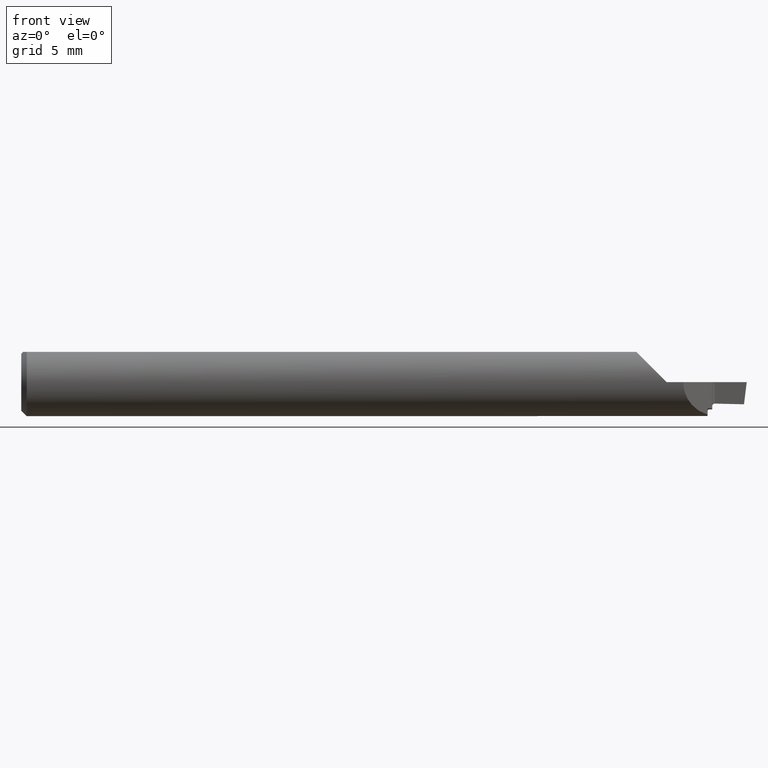
[diagram: clean part render]
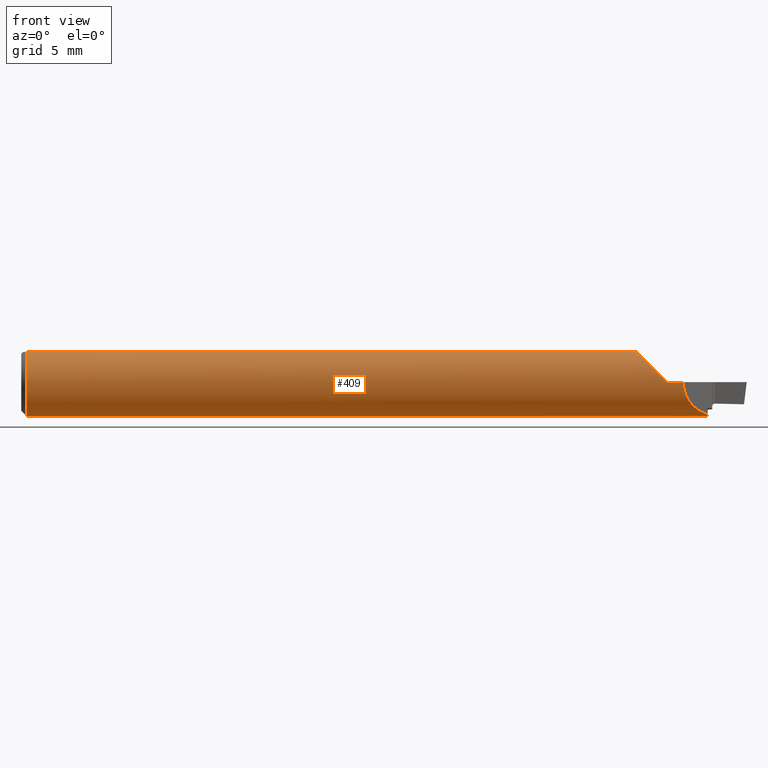
[diagram: same view with one face highlighted and labeled with its STEP entity id]
A machine part, front view. The second image highlights one B-rep face of the part: STEP entity #409.
In plain terms, the highlighted cylindrical surface (edge-blend (fillet) strip) has radius 2.3774 mm, axis along (-1, -0, -0).
Its self-contained STEP definition (entity closure, byte-faithful):
#9 = ORIENTED_EDGE ( 'NONE', *, *, #396, .T. ) ;
#17 = DIRECTION ( 'NONE',  ( -1.000000000000000000, -0.000000000000000000, -0.000000000000000000 ) ) ;
#23 = CARTESIAN_POINT ( 'NONE',  ( 1.824999999999999512, -0.09359999999999998876, -0.04306537613498800238 ) ) ;
#28 = DIRECTION ( 'NONE',  ( 0.000000000000000000, 0.000000000000000000, -1.000000000000000000 ) ) ;
#31 =( BOUNDED_CURVE ( )  B_SPLINE_CURVE ( 3, ( #588, #584, #23, #333 ),
 .UNSPECIFIED., .F., .T. ) 
 B_SPLINE_CURVE_WITH_KNOTS ( ( 4, 4 ),
 ( 4.999657666618046115, 6.283185307179586232 ),
 .UNSPECIFIED. ) 
 CURVE ( )  GEOMETRIC_REPRESENTATION_ITEM ( )  RATIONAL_B_SPLINE_CURVE ( ( 1.000000000000000000, 0.8673607768766125048, 0.8673607768766125048, 1.000000000000000000 ) ) 
 REPRESENTATION_ITEM ( '' )  );
#48 = ORIENTED_EDGE ( 'NONE', *, *, #654, .T. ) ;
#63 = VECTOR ( 'NONE', #601, 39.37007874015748143 ) ;
#77 = CARTESIAN_POINT ( 'NONE',  ( 0.01499999999999995955, 0.000000000000000000, 0.000000000000000000 ) ) ;
#86 = FACE_OUTER_BOUND ( 'NONE', #779, .T. ) ;
#100 = CARTESIAN_POINT ( 'NONE',  ( 1.459999999999999964, 0.000000000000000000, 0.000000000000000000 ) ) ;
#106 = VERTEX_POINT ( 'NONE', #731 ) ;
#117 = VECTOR ( 'NONE', #210, 39.37007874015748143 ) ;
#151 = CARTESIAN_POINT ( 'NONE',  ( 0.000000000000000000, 0.000000000000000000, 0.000000000000000000 ) ) ;
#159 = CARTESIAN_POINT ( 'NONE',  ( 1.695999999999999286, -0.04209513035969836975, 0.08360000000000000764 ) ) ;
#162 = ORIENTED_EDGE ( 'NONE', *, *, #616, .T. ) ;
#168 = CIRCLE ( 'NONE', #452, 0.09360000000000001652 ) ;
#186 = EDGE_CURVE ( 'NONE', #625, #254, #471, .T. ) ;
#194 = CARTESIAN_POINT ( 'NONE',  ( 1.712338867969052103, -0.07454376160376645355, 0.06726113203094705173 ) ) ;
#198 = CARTESIAN_POINT ( 'NONE',  ( 1.459999999999999964, -0.006308577734120122439, -0.09338716103925936984 ) ) ;
#200 = VERTEX_POINT ( 'NONE', #751 ) ;
#210 = DIRECTION ( 'NONE',  ( -1.000000000000000000, -0.000000000000000000, -0.000000000000000000 ) ) ;
#222 = VECTOR ( 'NONE', #336, 39.37007874015748143 ) ;
#234 = EDGE_CURVE ( 'NONE', #382, #439, #168, .T. ) ;
#246 = VECTOR ( 'NONE', #485, 39.37007874015748143 ) ;
#248 = EDGE_CURVE ( 'NONE', #766, #625, #346, .T. ) ;
#254 = VERTEX_POINT ( 'NONE', #159 ) ;
#259 = CIRCLE ( 'NONE', #799, 0.09360000000000001652 ) ;
#263 = CARTESIAN_POINT ( 'NONE',  ( 1.779599999999998516, -0.09360000000000001652, 0.000000000000000000 ) ) ;
#280 = ORIENTED_EDGE ( 'NONE', *, *, #544, .T. ) ;
#303 =( BOUNDED_CURVE ( )  B_SPLINE_CURVE ( 3, ( #792, #681, #732, #367 ),
 .UNSPECIFIED., .F., .F. ) 
 B_SPLINE_CURVE_WITH_KNOTS ( ( 4, 4 ),
 ( 1.638246794983561072, 1.858065013028253221 ),
 .UNSPECIFIED. ) 
 CURVE ( )  GEOMETRIC_REPRESENTATION_ITEM ( )  RATIONAL_B_SPLINE_CURVE ( ( 1.000000000000000000, 0.9959773811387675480, 0.9959773811387675480, 1.000000000000000000 ) ) 
 REPRESENTATION_ITEM ( '' )  );
#305 = LINE ( 'NONE', #800, #246 ) ;
#308 = DIRECTION ( 'NONE',  ( 1.000000000000000000, 0.000000000000000000, 0.000000000000000000 ) ) ;
#329 = DIRECTION ( 'NONE',  ( 1.000000000000000000, 0.000000000000000000, 0.000000000000000000 ) ) ;
#333 = CARTESIAN_POINT ( 'NONE',  ( 1.824999999999999512, -0.09360000000000003040, 0.000000000000000000 ) ) ;
#336 = DIRECTION ( 'NONE',  ( -1.000000000000000000, -0.000000000000000000, -0.000000000000000000 ) ) ;
#338 = DIRECTION ( 'NONE',  ( 0.000000000000000000, 0.000000000000000000, 1.000000000000000000 ) ) ;
#346 = LINE ( 'NONE', #769, #63 ) ;
#361 = ORIENTED_EDGE ( 'NONE', *, *, #368, .T. ) ;
#367 = CARTESIAN_POINT ( 'NONE',  ( 1.892079947235355775, -0.02652005276464429115, -0.08976439606748590205 ) ) ;
#368 = EDGE_CURVE ( 'NONE', #648, #766, #31, .T. ) ;
#374 = ORIENTED_EDGE ( 'NONE', *, *, #186, .T. ) ;
#382 = VERTEX_POINT ( 'NONE', #198 ) ;
#386 = ORIENTED_EDGE ( 'NONE', *, *, #784, .F. ) ;
#395 = CARTESIAN_POINT ( 'NONE',  ( 1.743269953535348638, -0.09360000000000001652, 0.03633004646465035764 ) ) ;
#396 = EDGE_CURVE ( 'NONE', #200, #106, #689, .T. ) ;
#398 = LINE ( 'NONE', #649, #222 ) ;
#404 = DIRECTION ( 'NONE',  ( 0.000000000000000000, 0.000000000000000000, -1.000000000000000000 ) ) ;
#409 = ADVANCED_FACE ( 'NONE', ( #86 ), #579, .T. ) ;
#411 = ORIENTED_EDGE ( 'NONE', *, *, #234, .F. ) ;
#421 = EDGE_CURVE ( 'NONE', #254, #200, #523, .T. ) ;
#428 = CARTESIAN_POINT ( 'NONE',  ( 1.892079947235355775, -0.02652005276464429115, -0.08976439606748590205 ) ) ;
#439 = VERTEX_POINT ( 'NONE', #776 ) ;
#440 = CARTESIAN_POINT ( 'NONE',  ( 0.01499999999999995955, 0.000000000000000000, 0.000000000000000000 ) ) ;
#452 = AXIS2_PLACEMENT_3D ( 'NONE', #100, #524, #404 ) ;
#468 = AXIS2_PLACEMENT_3D ( 'NONE', #151, #17, #338 ) ;
#471 =( BOUNDED_CURVE ( )  B_SPLINE_CURVE ( 3, ( #263, #395, #194, #504 ),
 .UNSPECIFIED., .F., .F. ) 
 B_SPLINE_CURVE_WITH_KNOTS ( ( 4, 4 ),
 ( 4.712388980384689674, 5.816717474156034129 ),
 .UNSPECIFIED. ) 
 CURVE ( )  GEOMETRIC_REPRESENTATION_ITEM ( )  RATIONAL_B_SPLINE_CURVE ( ( 1.000000000000000000, 0.9009275347591065852, 0.9009275347591065852, 1.000000000000000000 ) ) 
 REPRESENTATION_ITEM ( '' )  );
#485 = DIRECTION ( 'NONE',  ( 1.000000000000000000, 0.000000000000000000, 0.000000000000000000 ) ) ;
#491 = CARTESIAN_POINT ( 'NONE',  ( 1.779599999999998516, -0.09360000000000001652, 0.000000000000000000 ) ) ;
#499 = CARTESIAN_POINT ( 'NONE',  ( 1.891727154626402729, -0.006308577734113422937, -0.09338716103925945311 ) ) ;
#504 = CARTESIAN_POINT ( 'NONE',  ( 1.695999999999999286, -0.04209513035969836975, 0.08360000000000000764 ) ) ;
#522 = ORIENTED_EDGE ( 'NONE', *, *, #248, .T. ) ;
#523 = LINE ( 'NONE', #768, #117 ) ;
#524 = DIRECTION ( 'NONE',  ( 1.000000000000000000, 0.000000000000000000, 0.000000000000000000 ) ) ;
#544 = EDGE_CURVE ( 'NONE', #106, #545, #259, .T. ) ;
#545 = VERTEX_POINT ( 'NONE', #690 ) ;
#579 = CYLINDRICAL_SURFACE ( 'NONE', #468, 0.09360000000000001652 ) ;
#584 = CARTESIAN_POINT ( 'NONE',  ( 1.850779333130907700, -0.06782066686909211939, -0.07756251521888408995 ) ) ;
#588 = CARTESIAN_POINT ( 'NONE',  ( 1.892079947235355775, -0.02652005276464429115, -0.08976439606748590205 ) ) ;
#601 = DIRECTION ( 'NONE',  ( -1.000000000000000000, -0.000000000000000000, -0.000000000000000000 ) ) ;
#616 = EDGE_CURVE ( 'NONE', #545, #439, #305, .T. ) ;
#624 = DIRECTION ( 'NONE',  ( 0.000000000000000000, 0.000000000000000000, -1.000000000000000000 ) ) ;
#625 = VERTEX_POINT ( 'NONE', #491 ) ;
#648 = VERTEX_POINT ( 'NONE', #428 ) ;
#649 = CARTESIAN_POINT ( 'NONE',  ( 1.678500000000000103, -0.006308577734120109429, -0.09338716103925938372 ) ) ;
#654 = EDGE_CURVE ( 'NONE', #712, #648, #303, .T. ) ;
#681 = CARTESIAN_POINT ( 'NONE',  ( 1.891846836081712668, -0.01316512371673315973, -0.09292398116702134392 ) ) ;
#689 = CIRCLE ( 'NONE', #785, 0.09360000000000001652 ) ;
#690 = CARTESIAN_POINT ( 'NONE',  ( 0.01499999999999995955, 0.04209513035969836975, 0.08360000000000000764 ) ) ;
#712 = VERTEX_POINT ( 'NONE', #499 ) ;
#731 = CARTESIAN_POINT ( 'NONE',  ( 0.01499999999999995781, 0.000000000000000000, -0.09360000000000001652 ) ) ;
#732 = CARTESIAN_POINT ( 'NONE',  ( 1.891964908578683380, -0.01992949253784758942, -0.09171151555606145422 ) ) ;
#751 = CARTESIAN_POINT ( 'NONE',  ( 0.01499999999999995781, -0.04209513035969836975, 0.08360000000000000764 ) ) ;
#761 = CARTESIAN_POINT ( 'NONE',  ( 1.824999999999999512, -0.09360000000000003040, 0.000000000000000000 ) ) ;
#766 = VERTEX_POINT ( 'NONE', #761 ) ;
#768 = CARTESIAN_POINT ( 'NONE',  ( 0.000000000000000000, -0.04209513035969836975, 0.08360000000000000764 ) ) ;
#769 = CARTESIAN_POINT ( 'NONE',  ( 0.000000000000000000, -0.09360000000000001652, 0.000000000000000000 ) ) ;
#770 = ORIENTED_EDGE ( 'NONE', *, *, #421, .T. ) ;
#776 = CARTESIAN_POINT ( 'NONE',  ( 1.459999999999999964, 0.04209513035969836975, 0.08360000000000000764 ) ) ;
#779 = EDGE_LOOP ( 'NONE', ( #411, #386, #48, #361, #522, #374, #770, #9, #280, #162 ) ) ;
#784 = EDGE_CURVE ( 'NONE', #712, #382, #398, .T. ) ;
#785 = AXIS2_PLACEMENT_3D ( 'NONE', #77, #329, #28 ) ;
#792 = CARTESIAN_POINT ( 'NONE',  ( 1.891727154626402729, -0.006308577734113422937, -0.09338716103925945311 ) ) ;
#799 = AXIS2_PLACEMENT_3D ( 'NONE', #440, #308, #624 ) ;
#800 = CARTESIAN_POINT ( 'NONE',  ( 0.000000000000000000, 0.04209513035969836975, 0.08360000000000000764 ) ) ;